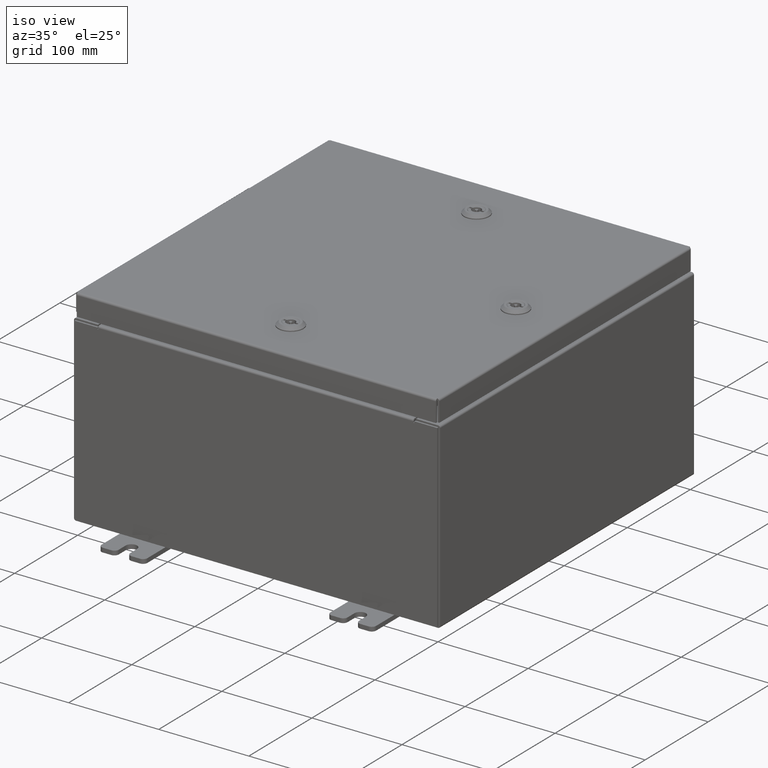
[diagram: clean part render]
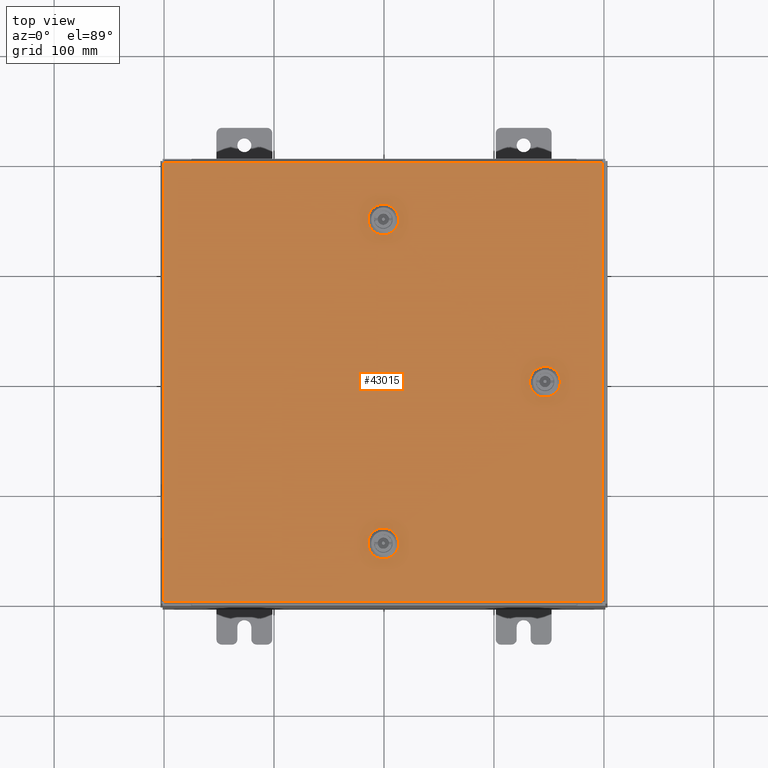
[diagram: tour spotlight — one face highlighted and labeled with its STEP entity id]
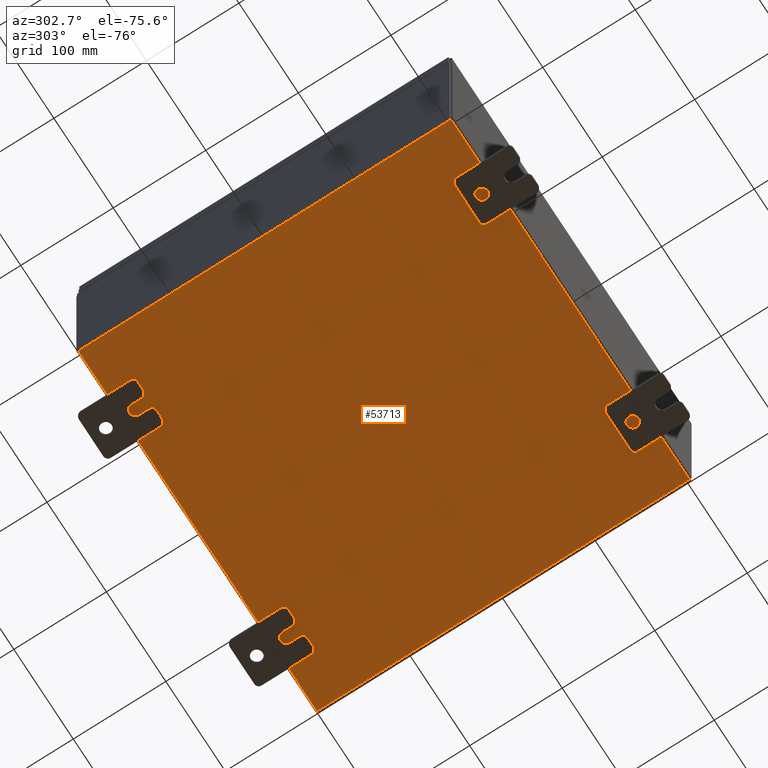
[diagram: tour spotlight — one face highlighted and labeled with its STEP entity id]
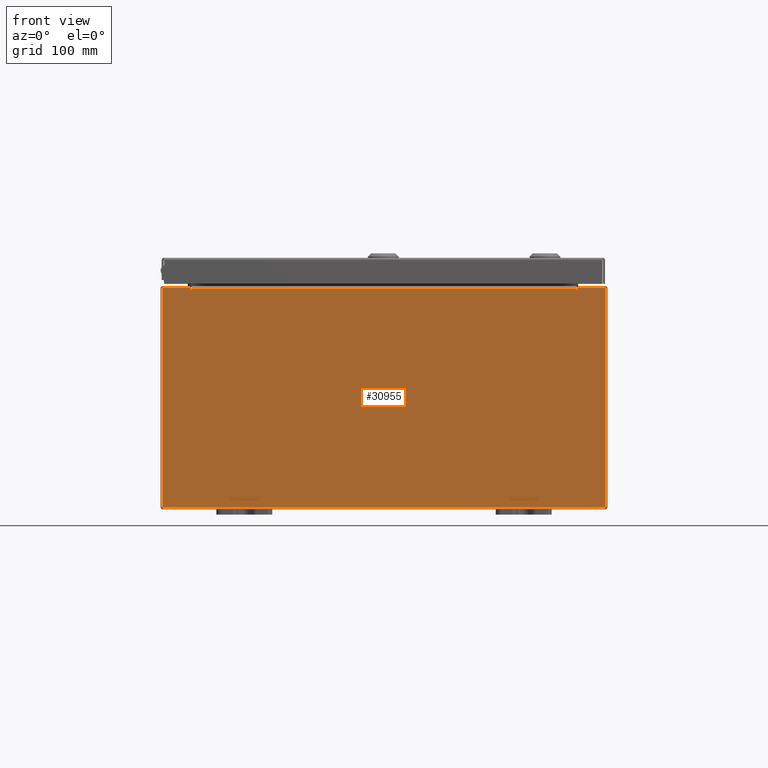
[diagram: tour spotlight — one face highlighted and labeled with its STEP entity id]
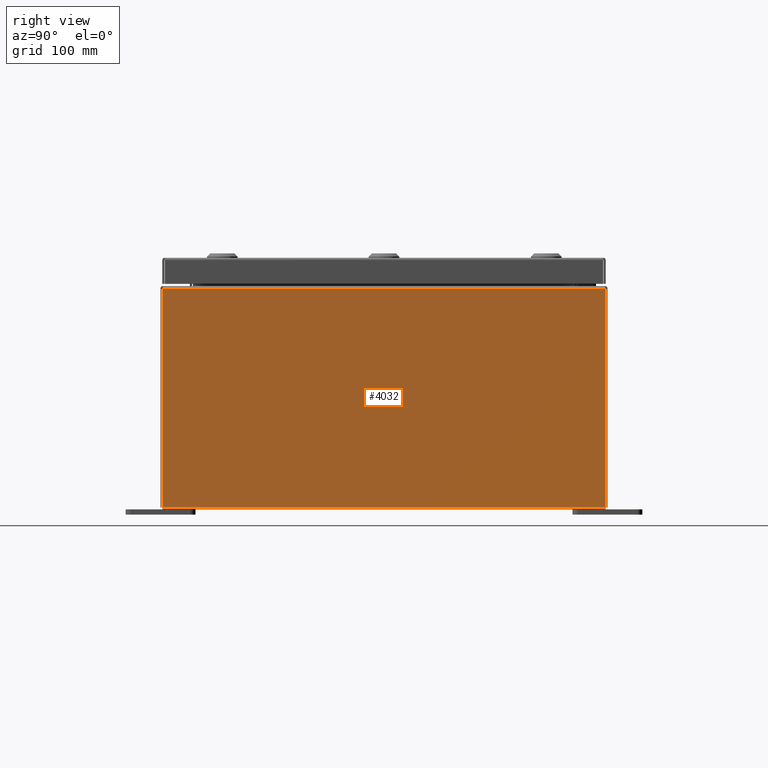
[diagram: tour spotlight — one face highlighted and labeled with its STEP entity id]
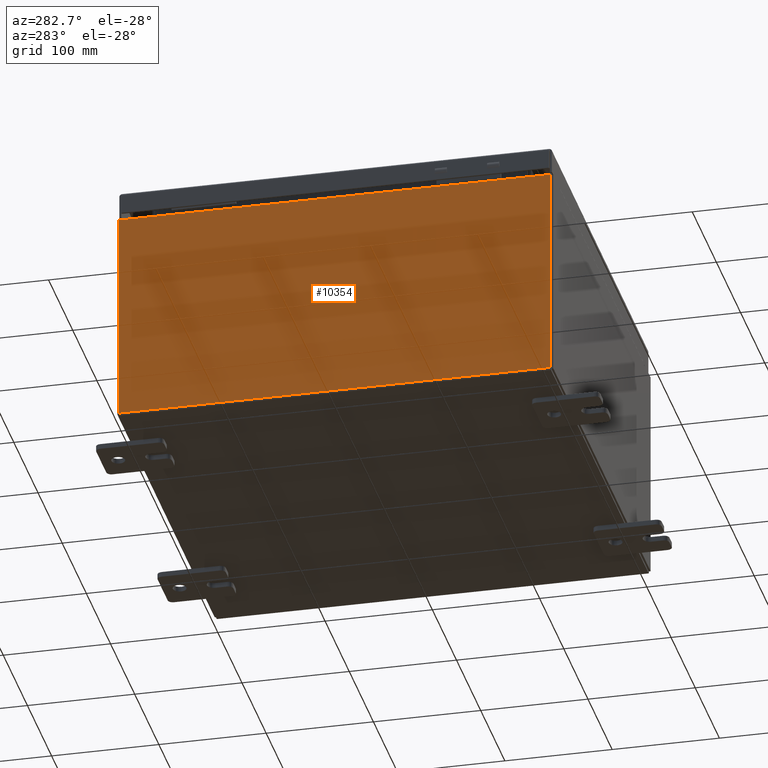
[diagram: tour spotlight — one face highlighted and labeled with its STEP entity id]
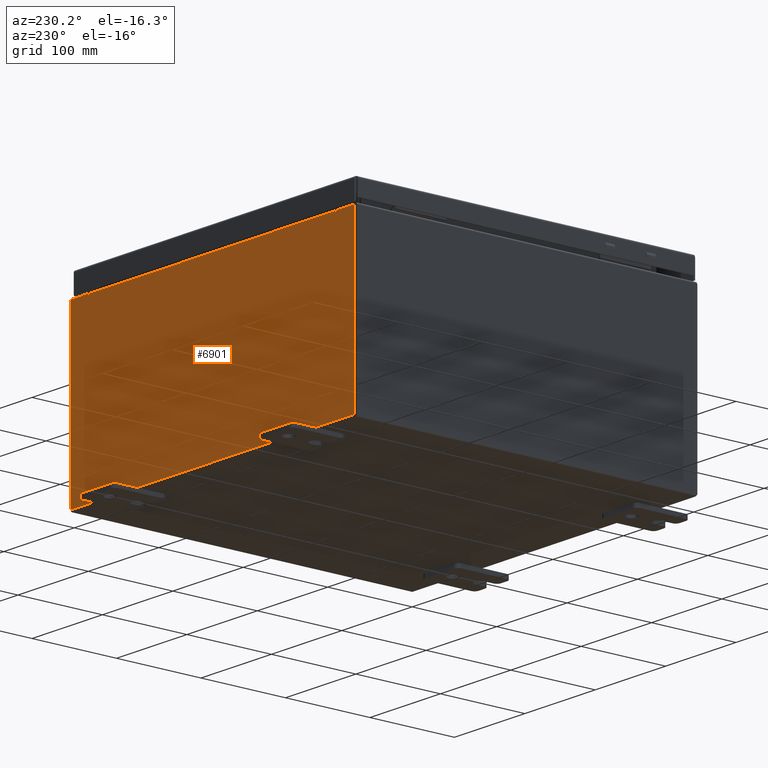
[diagram: tour spotlight — one face highlighted and labeled with its STEP entity id]
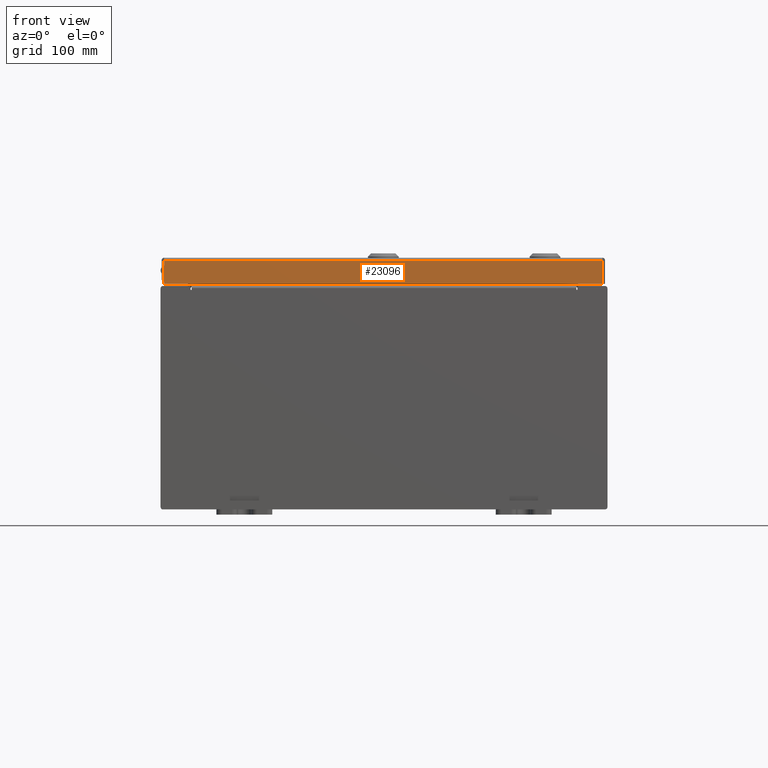
[diagram: tour spotlight — one face highlighted and labeled with its STEP entity id]
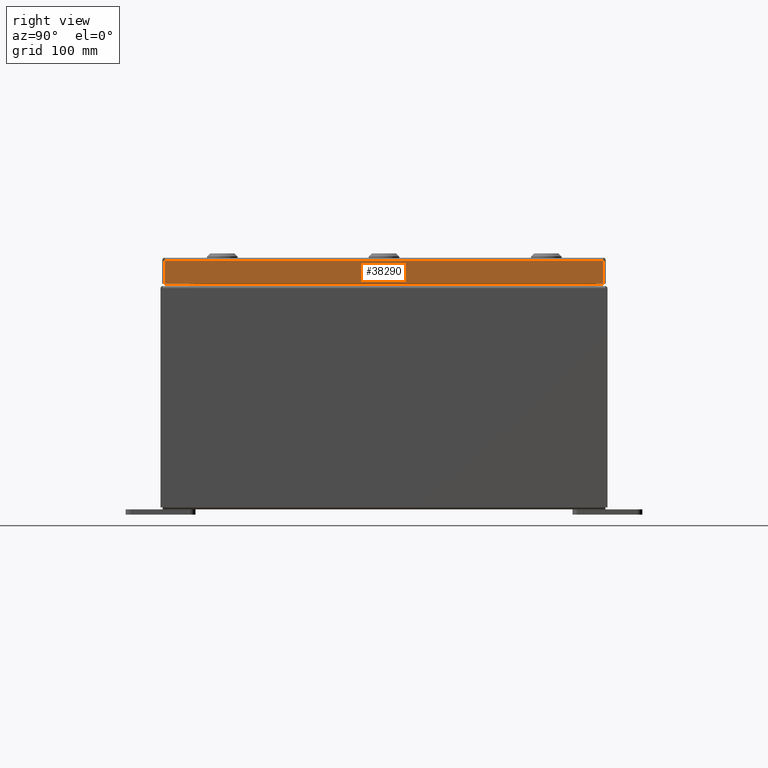
[diagram: tour spotlight — one face highlighted and labeled with its STEP entity id]
A machine part: a face-by-face anatomy tour. The part has 2966 B-rep faces; the first image is the clean iso view, then the 8 largest visible faces are spotlighted one at a time (largest first), each with its STEP entity span.

Face 1 — top view, entity #43015. In plain terms, the highlighted planar face has unit normal (0, 0, -1).
Definition (entity closure, byte-faithful):
#804 = LINE ( 'NONE', #60760, #2349 ) ;
#1057 = EDGE_CURVE ( 'NONE', #28223, #12970, #11593, .T. ) ;
#1468 = VECTOR ( 'NONE', #32363, 39.37007874015748100 ) ;
#1615 = PLANE ( 'NONE',  #28605 ) ;
#1704 = ORIENTED_EDGE ( 'NONE', *, *, #56262, .F. ) ;
#1844 = ORIENTED_EDGE ( 'NONE', *, *, #3812, .F. ) ;
#2332 = CARTESIAN_POINT ( 'NONE',  ( -0.1994523752678689600, -5.392799999999994900, -4.698778549102532700E-014 ) ) ;
#2349 = VECTOR ( 'NONE', #17501, 39.37007874015748100 ) ;
#2397 = ORIENTED_EDGE ( 'NONE', *, *, #27569, .F. ) ;
#2421 = CARTESIAN_POINT ( 'NONE',  ( 1.529834876451987200E-014, -5.787799999999992700, -4.917326388595673900E-014 ) ) ;
#2520 = CARTESIAN_POINT ( 'NONE',  ( -7.849800000000000100, 7.849800000000000100, 0.0000000000000000000 ) ) ;
#2779 = AXIS2_PLACEMENT_3D ( 'NONE', #40483, #11596, #45368 ) ;
#2960 = VECTOR ( 'NONE', #10441, 39.37007874015748100 ) ;
#3325 = VERTEX_POINT ( 'NONE', #16240 ) ;
#3342 = EDGE_LOOP ( 'NONE', ( #14923, #51410, #31887, #1704, #23796 ) ) ;
#3812 = EDGE_CURVE ( 'NONE', #57940, #23081, #45528, .T. ) ;
#4157 = VERTEX_POINT ( 'NONE', #57452 ) ;
#4488 = DIRECTION ( 'NONE',  ( 1.000000000000000000, 2.739348669069617500E-015, -0.0000000000000000000 ) ) ;
#4631 = CARTESIAN_POINT ( 'NONE',  ( 7.849800000000000100, -7.849800000000000100, 0.0000000000000000000 ) ) ;
#4758 = EDGE_CURVE ( 'NONE', #17139, #5789, #56778, .T. ) ;
#5789 = VERTEX_POINT ( 'NONE', #18703 ) ;
#6395 = CARTESIAN_POINT ( 'NONE',  ( 5.787800000000007800, 1.529834876451987200E-014, 0.0000000000000000000 ) ) ;
#6435 = DIRECTION ( 'NONE',  ( -1.000000000000000000, 0.0000000000000000000, -0.0000000000000000000 ) ) ;
#6746 = VERTEX_POINT ( 'NONE', #48368 ) ;
#7243 = DIRECTION ( 'NONE',  ( 0.0000000000000000000, 1.000000000000000000, 6.982962677686252500E-015 ) ) ;
#8607 = EDGE_CURVE ( 'NONE', #25099, #57940, #51310, .T. ) ;
#8903 = VECTOR ( 'NONE', #52723, 39.37007874015748100 ) ;
#9450 = ORIENTED_EDGE ( 'NONE', *, *, #8607, .F. ) ;
#9581 = FACE_BOUND ( 'NONE', #3342, .T. ) ;
#9609 = CARTESIAN_POINT ( 'NONE',  ( 5.787800000000007800, 1.529834876451987200E-014, 0.0000000000000000000 ) ) ;
#9726 = AXIS2_PLACEMENT_3D ( 'NONE', #6395, #40132, #11247 ) ;
#10186 = CARTESIAN_POINT ( 'NONE',  ( 0.1994523752679067700, 6.182799999999984300, 0.0000000000000000000 ) ) ;
#10441 = DIRECTION ( 'NONE',  ( -8.218046007208852600E-015, 1.000000000000000000, -0.0000000000000000000 ) ) ;
#10551 = EDGE_CURVE ( 'NONE', #30524, #57925, #43918, .T. ) ;
#11247 = DIRECTION ( 'NONE',  ( 1.000000000000000000, 0.0000000000000000000, 0.0000000000000000000 ) ) ;
#11593 = LINE ( 'NONE', #10186, #50140 ) ;
#11596 = DIRECTION ( 'NONE',  ( 0.0000000000000000000, 0.0000000000000000000, 1.000000000000000000 ) ) ;
#12262 = ORIENTED_EDGE ( 'NONE', *, *, #4758, .F. ) ;
#12346 = CARTESIAN_POINT ( 'NONE',  ( 5.392800000000011800, -0.1994523752678671000, 0.0000000000000000000 ) ) ;
#12498 = CARTESIAN_POINT ( 'NONE',  ( 0.1994523752678995500, 5.392799999999995800, 0.0000000000000000000 ) ) ;
#12970 = VERTEX_POINT ( 'NONE', #28942 ) ;
#13167 = CARTESIAN_POINT ( 'NONE',  ( 0.1994523752678995500, -5.392799999999995800, -4.698778549102532700E-014 ) ) ;
#13423 = AXIS2_PLACEMENT_3D ( 'NONE', #53425, #24477, #58225 ) ;
#13431 = DIRECTION ( 'NONE',  ( -1.095739467627836100E-014, -1.000000000000000000, 0.0000000000000000000 ) ) ;
#14070 = LINE ( 'NONE', #45462, #36724 ) ;
#14146 = CARTESIAN_POINT ( 'NONE',  ( -7.849800000000000100, -7.849800000000000100, 0.0000000000000000000 ) ) ;
#14435 = DIRECTION ( 'NONE',  ( 1.000000000000000000, 0.0000000000000000000, 0.0000000000000000000 ) ) ;
#14923 = ORIENTED_EDGE ( 'NONE', *, *, #60763, .F. ) ;
#15655 = EDGE_CURVE ( 'NONE', #29389, #6746, #33766, .T. ) ;
#16240 = CARTESIAN_POINT ( 'NONE',  ( 0.4425000000000126100, 5.787799999999992700, 0.0000000000000000000 ) ) ;
#16572 = EDGE_CURVE ( 'NONE', #20426, #29389, #14070, .T. ) ;
#16752 = CIRCLE ( 'NONE', #13423, 0.4424999999999972800 ) ;
#17139 = VERTEX_POINT ( 'NONE', #58420 ) ;
#17501 = DIRECTION ( 'NONE',  ( 1.000000000000000000, 1.369674334534795400E-014, 9.732121487607481600E-029 ) ) ;
#18163 = EDGE_LOOP ( 'NONE', ( #44985, #40050, #35601, #28968 ) ) ;
#18388 = CARTESIAN_POINT ( 'NONE',  ( 0.1994523752679068500, 6.182799999999984300, 0.0000000000000000000 ) ) ;
#18703 = CARTESIAN_POINT ( 'NONE',  ( 5.392800000000015400, 0.1994523752679058200, 0.0000000000000000000 ) ) ;
#18780 = VERTEX_POINT ( 'NONE', #34643 ) ;
#18915 = CARTESIAN_POINT ( 'NONE',  ( 0.4425000000000126100, -5.787799999999992700, -4.917326388595673900E-014 ) ) ;
#19434 = VECTOR ( 'NONE', #23866, 39.37007874015748100 ) ;
#20071 = ORIENTED_EDGE ( 'NONE', *, *, #10551, .F. ) ;
#20364 = DIRECTION ( 'NONE',  ( -0.0000000000000000000, -6.982962677686266700E-015, 1.000000000000000000 ) ) ;
#20426 = VERTEX_POINT ( 'NONE', #14146 ) ;
#23081 = VERTEX_POINT ( 'NONE', #46308 ) ;
#23623 = CARTESIAN_POINT ( 'NONE',  ( 7.849800000000000100, 7.849800000000000100, 0.0000000000000000000 ) ) ;
#23796 = ORIENTED_EDGE ( 'NONE', *, *, #53002, .F. ) ;
#23866 = DIRECTION ( 'NONE',  ( 0.0000000000000000000, 1.000000000000000000, 0.0000000000000000000 ) ) ;
#24400 = CIRCLE ( 'NONE', #36163, 0.4424999999999973400 ) ;
#24477 = DIRECTION ( 'NONE',  ( -0.0000000000000000000, -6.982962677686266700E-015, 1.000000000000000000 ) ) ;
#24873 = AXIS2_PLACEMENT_3D ( 'NONE', #9609, #43389, #14435 ) ;
#25099 = VERTEX_POINT ( 'NONE', #61704 ) ;
#25324 = VERTEX_POINT ( 'NONE', #29164 ) ;
#25556 = CARTESIAN_POINT ( 'NONE',  ( 1.529834876451987200E-014, 5.787799999999992700, 0.0000000000000000000 ) ) ;
#27090 = CIRCLE ( 'NONE', #38597, 0.4424999999999972800 ) ;
#27569 = EDGE_CURVE ( 'NONE', #5789, #30524, #59768, .T. ) ;
#28036 = CARTESIAN_POINT ( 'NONE',  ( 1.529834876451987200E-014, 5.787799999999992700, 0.0000000000000000000 ) ) ;
#28223 = VERTEX_POINT ( 'NONE', #18388 ) ;
#28470 = AXIS2_PLACEMENT_3D ( 'NONE', #2421, #36109, #7243 ) ;
#28605 = AXIS2_PLACEMENT_3D ( 'NONE', #54382, #35325, #6435 ) ;
#28942 = CARTESIAN_POINT ( 'NONE',  ( -0.1994523752678657400, 6.182799999999989600, 0.0000000000000000000 ) ) ;
#28968 = ORIENTED_EDGE ( 'NONE', *, *, #33385, .T. ) ;
#29164 = CARTESIAN_POINT ( 'NONE',  ( -0.1994523752678689600, 5.392799999999994900, 0.0000000000000000000 ) ) ;
#29389 = VERTEX_POINT ( 'NONE', #4631 ) ;
#30383 = DIRECTION ( 'NONE',  ( 1.000000000000000000, 0.0000000000000000000, 0.0000000000000000000 ) ) ;
#30524 = VERTEX_POINT ( 'NONE', #12346 ) ;
#31887 = ORIENTED_EDGE ( 'NONE', *, *, #1057, .F. ) ;
#32363 = DIRECTION ( 'NONE',  ( -1.000000000000000000, 2.739348669069617500E-015, 1.946424297521515400E-029 ) ) ;
#32639 = CARTESIAN_POINT ( 'NONE',  ( 5.392800000000015400, 0.1994523752679053800, 0.0000000000000000000 ) ) ;
#32874 = DIRECTION ( 'NONE',  ( 1.000000000000000000, 0.0000000000000000000, 0.0000000000000000000 ) ) ;
#33098 = ORIENTED_EDGE ( 'NONE', *, *, #60209, .F. ) ;
#33360 = CARTESIAN_POINT ( 'NONE',  ( 0.1994523752678995500, 5.392799999999995800, 0.0000000000000000000 ) ) ;
#33385 = EDGE_CURVE ( 'NONE', #18780, #20426, #45941, .T. ) ;
#33714 = FACE_BOUND ( 'NONE', #58703, .T. ) ;
#33766 = LINE ( 'NONE', #47926, #19434 ) ;
#34643 = CARTESIAN_POINT ( 'NONE',  ( -7.849800000000000100, 7.849800000000000100, 0.0000000000000000000 ) ) ;
#35296 = LINE ( 'NONE', #23623, #48157 ) ;
#35325 = DIRECTION ( 'NONE',  ( 0.0000000000000000000, 0.0000000000000000000, -1.000000000000000000 ) ) ;
#35601 = ORIENTED_EDGE ( 'NONE', *, *, #61346, .T. ) ;
#36109 = DIRECTION ( 'NONE',  ( -0.0000000000000000000, -6.982962677686266700E-015, 1.000000000000000000 ) ) ;
#36163 = AXIS2_PLACEMENT_3D ( 'NONE', #28036, #61827, #32874 ) ;
#36724 = VECTOR ( 'NONE', #39528, 39.37007874015748100 ) ;
#38597 = AXIS2_PLACEMENT_3D ( 'NONE', #49307, #20364, #54163 ) ;
#38728 = CIRCLE ( 'NONE', #57445, 0.4424999999999979500 ) ;
#39052 = DIRECTION ( 'NONE',  ( -1.000000000000000000, 1.369674334534795400E-014, 0.0000000000000000000 ) ) ;
#39528 = DIRECTION ( 'NONE',  ( 1.000000000000000000, -0.0000000000000000000, -0.0000000000000000000 ) ) ;
#40050 = ORIENTED_EDGE ( 'NONE', *, *, #15655, .T. ) ;
#40132 = DIRECTION ( 'NONE',  ( 0.0000000000000000000, 0.0000000000000000000, 1.000000000000000000 ) ) ;
#40483 = CARTESIAN_POINT ( 'NONE',  ( 1.529834876451987200E-014, 5.787799999999992700, 0.0000000000000000000 ) ) ;
#42318 = CIRCLE ( 'NONE', #2779, 0.4424999999999973400 ) ;
#42595 = ORIENTED_EDGE ( 'NONE', *, *, #56428, .F. ) ;
#43015 = ADVANCED_FACE ( 'NONE', ( #59415, #33714, #9581, #48097 ), #1615, .F. ) ;
#43389 = DIRECTION ( 'NONE',  ( 0.0000000000000000000, 0.0000000000000000000, 1.000000000000000000 ) ) ;
#43918 = CIRCLE ( 'NONE', #9726, 0.4424999999999983400 ) ;
#44985 = ORIENTED_EDGE ( 'NONE', *, *, #16572, .T. ) ;
#45368 = DIRECTION ( 'NONE',  ( 1.000000000000000000, 0.0000000000000000000, 0.0000000000000000000 ) ) ;
#45462 = CARTESIAN_POINT ( 'NONE',  ( -7.849800000000000100, -7.849800000000000100, 0.0000000000000000000 ) ) ;
#45528 = CIRCLE ( 'NONE', #28470, 0.4424999999999983400 ) ;
#45768 = CARTESIAN_POINT ( 'NONE',  ( 6.182800000000007400, -0.1994523752678676000, 0.0000000000000000000 ) ) ;
#45941 = LINE ( 'NONE', #2520, #8903 ) ;
#46308 = CARTESIAN_POINT ( 'NONE',  ( -0.1994523752678657400, -6.182799999999990500, 0.0000000000000000000 ) ) ;
#46948 = VECTOR ( 'NONE', #13431, 39.37007874015748100 ) ;
#47341 = EDGE_CURVE ( 'NONE', #12970, #25324, #38728, .T. ) ;
#47926 = CARTESIAN_POINT ( 'NONE',  ( 7.849800000000000100, -7.849800000000000100, 0.0000000000000000000 ) ) ;
#48097 = FACE_OUTER_BOUND ( 'NONE', #18163, .T. ) ;
#48157 = VECTOR ( 'NONE', #62271, 39.37007874015748100 ) ;
#48368 = CARTESIAN_POINT ( 'NONE',  ( 7.849800000000000100, 7.849800000000000100, 0.0000000000000000000 ) ) ;
#49307 = CARTESIAN_POINT ( 'NONE',  ( 1.529834876451987200E-014, -5.787799999999992700, -4.917326388595673900E-014 ) ) ;
#49419 = VERTEX_POINT ( 'NONE', #12498 ) ;
#49867 = EDGE_CURVE ( 'NONE', #4157, #53607, #16752, .T. ) ;
#50140 = VECTOR ( 'NONE', #39052, 39.37007874015748100 ) ;
#50493 = VECTOR ( 'NONE', #4488, 39.37007874015748100 ) ;
#50663 = ORIENTED_EDGE ( 'NONE', *, *, #60207, .F. ) ;
#51310 = LINE ( 'NONE', #13167, #1468 ) ;
#51410 = ORIENTED_EDGE ( 'NONE', *, *, #47341, .F. ) ;
#51986 = LINE ( 'NONE', #33360, #50493 ) ;
#52723 = DIRECTION ( 'NONE',  ( 0.0000000000000000000, -1.000000000000000000, 0.0000000000000000000 ) ) ;
#52778 = LINE ( 'NONE', #58551, #2960 ) ;
#53002 = EDGE_CURVE ( 'NONE', #49419, #3325, #24400, .T. ) ;
#53425 = CARTESIAN_POINT ( 'NONE',  ( 1.529834876451987200E-014, -5.787799999999992700, -4.917326388595673900E-014 ) ) ;
#53607 = VERTEX_POINT ( 'NONE', #18915 ) ;
#54163 = DIRECTION ( 'NONE',  ( 0.0000000000000000000, 1.000000000000000000, 6.982962677686269100E-015 ) ) ;
#54382 = CARTESIAN_POINT ( 'NONE',  ( 0.0000000000000000000, 0.0000000000000000000, 0.0000000000000000000 ) ) ;
#56262 = EDGE_CURVE ( 'NONE', #3325, #28223, #42318, .T. ) ;
#56428 = EDGE_CURVE ( 'NONE', #23081, #4157, #804, .T. ) ;
#56778 = CIRCLE ( 'NONE', #24873, 0.4424999999999972800 ) ;
#57445 = AXIS2_PLACEMENT_3D ( 'NONE', #25556, #59299, #30383 ) ;
#57452 = CARTESIAN_POINT ( 'NONE',  ( 0.1994523752679070700, -6.182799999999984300, -5.245148147835385400E-014 ) ) ;
#57920 = EDGE_LOOP ( 'NONE', ( #50663, #20071, #2397, #12262 ) ) ;
#57925 = VERTEX_POINT ( 'NONE', #45768 ) ;
#57940 = VERTEX_POINT ( 'NONE', #2332 ) ;
#58225 = DIRECTION ( 'NONE',  ( 0.0000000000000000000, 1.000000000000000000, 6.982962677686269100E-015 ) ) ;
#58420 = CARTESIAN_POINT ( 'NONE',  ( 6.182800000000003000, 0.1994523752679009100, 0.0000000000000000000 ) ) ;
#58441 = ORIENTED_EDGE ( 'NONE', *, *, #49867, .F. ) ;
#58551 = CARTESIAN_POINT ( 'NONE',  ( 6.182800000000003000, 0.1994523752679009100, 0.0000000000000000000 ) ) ;
#58703 = EDGE_LOOP ( 'NONE', ( #42595, #1844, #9450, #33098, #58441 ) ) ;
#59299 = DIRECTION ( 'NONE',  ( 0.0000000000000000000, 0.0000000000000000000, 1.000000000000000000 ) ) ;
#59415 = FACE_BOUND ( 'NONE', #57920, .T. ) ;
#59768 = LINE ( 'NONE', #32639, #46948 ) ;
#60207 = EDGE_CURVE ( 'NONE', #57925, #17139, #52778, .T. ) ;
#60209 = EDGE_CURVE ( 'NONE', #53607, #25099, #27090, .T. ) ;
#60760 = CARTESIAN_POINT ( 'NONE',  ( 0.1994523752679067700, -6.182799999999984300, -5.245148147835385400E-014 ) ) ;
#60763 = EDGE_CURVE ( 'NONE', #25324, #49419, #51986, .T. ) ;
#61346 = EDGE_CURVE ( 'NONE', #6746, #18780, #35296, .T. ) ;
#61704 = CARTESIAN_POINT ( 'NONE',  ( 0.1994523752678995500, -5.392799999999995800, -4.698778549102532700E-014 ) ) ;
#61827 = DIRECTION ( 'NONE',  ( 0.0000000000000000000, 0.0000000000000000000, 1.000000000000000000 ) ) ;
#62271 = DIRECTION ( 'NONE',  ( -1.000000000000000000, -0.0000000000000000000, -0.0000000000000000000 ) ) ;

Face 2 — auxiliary view, entity #53713. In plain terms, the highlighted planar face has unit normal (0, 0, -1).
Definition (entity closure, byte-faithful):
#538 = VERTEX_POINT ( 'NONE', #22164 ) ;
#1222 = ORIENTED_EDGE ( 'NONE', *, *, #12214, .F. ) ;
#2459 = DIRECTION ( 'NONE',  ( -0.0000000000000000000, 1.000000000000000000, -0.0000000000000000000 ) ) ;
#9842 = DIRECTION ( 'NONE',  ( -1.000000000000000000, 0.0000000000000000000, -0.0000000000000000000 ) ) ;
#10567 = ORIENTED_EDGE ( 'NONE', *, *, #50909, .T. ) ;
#11409 = EDGE_CURVE ( 'NONE', #17086, #538, #35509, .T. ) ;
#12214 = EDGE_CURVE ( 'NONE', #39843, #42741, #31725, .T. ) ;
#13976 = EDGE_LOOP ( 'NONE', ( #1222, #10567, #15489, #41540 ) ) ;
#15224 = CARTESIAN_POINT ( 'NONE',  ( 7.912299999999998300, 7.925300000000000000, -0.07469999999999996100 ) ) ;
#15489 = ORIENTED_EDGE ( 'NONE', *, *, #11409, .F. ) ;
#17086 = VERTEX_POINT ( 'NONE', #28123 ) ;
#18581 = LINE ( 'NONE', #15224, #55655 ) ;
#18868 = VECTOR ( 'NONE', #52161, 39.37007874015748100 ) ;
#20342 = CARTESIAN_POINT ( 'NONE',  ( -7.912300000000001000, -7.925300000000000900, -0.07469999999999996100 ) ) ;
#22164 = CARTESIAN_POINT ( 'NONE',  ( -7.912300000000001000, 7.925299999999998200, -0.07469999999999998900 ) ) ;
#23228 = CARTESIAN_POINT ( 'NONE',  ( -8.000000000000001800, -7.925300000000000900, -0.07469999999999998900 ) ) ;
#24208 = VECTOR ( 'NONE', #32784, 39.37007874015748100 ) ;
#28123 = CARTESIAN_POINT ( 'NONE',  ( 7.912299999999998300, 7.925300000000000000, -0.07469999999999996100 ) ) ;
#28865 = FACE_OUTER_BOUND ( 'NONE', #13976, .T. ) ;
#31725 = LINE ( 'NONE', #23228, #18868 ) ;
#32784 = DIRECTION ( 'NONE',  ( -1.000000000000000000, -0.0000000000000000000, -0.0000000000000000000 ) ) ;
#33877 = CARTESIAN_POINT ( 'NONE',  ( 0.0000000000000000000, 0.0000000000000000000, -0.07469999999999998900 ) ) ;
#35509 = LINE ( 'NONE', #61749, #24208 ) ;
#38710 = DIRECTION ( 'NONE',  ( 0.0000000000000000000, 0.0000000000000000000, -1.000000000000000000 ) ) ;
#39843 = VERTEX_POINT ( 'NONE', #20342 ) ;
#40152 = LINE ( 'NONE', #60255, #51532 ) ;
#41540 = ORIENTED_EDGE ( 'NONE', *, *, #43582, .T. ) ;
#42741 = VERTEX_POINT ( 'NONE', #62189 ) ;
#43415 = PLANE ( 'NONE',  #59662 ) ;
#43582 = EDGE_CURVE ( 'NONE', #17086, #42741, #18581, .T. ) ;
#50909 = EDGE_CURVE ( 'NONE', #39843, #538, #40152, .T. ) ;
#51532 = VECTOR ( 'NONE', #2459, 39.37007874015748100 ) ;
#52161 = DIRECTION ( 'NONE',  ( 1.000000000000000000, 0.0000000000000000000, 0.0000000000000000000 ) ) ;
#53713 = ADVANCED_FACE ( 'NONE', ( #28865 ), #43415, .T. ) ;
#55655 = VECTOR ( 'NONE', #58694, 39.37007874015748100 ) ;
#58694 = DIRECTION ( 'NONE',  ( -0.0000000000000000000, -1.000000000000000000, -0.0000000000000000000 ) ) ;
#59662 = AXIS2_PLACEMENT_3D ( 'NONE', #33877, #38710, #9842 ) ;
#60255 = CARTESIAN_POINT ( 'NONE',  ( -7.912300000000001000, -7.925300000000000900, -0.07469999999999996100 ) ) ;
#61749 = CARTESIAN_POINT ( 'NONE',  ( -8.000000000000001800, 7.925299999999998200, -0.07469999999999998900 ) ) ;
#62189 = CARTESIAN_POINT ( 'NONE',  ( 7.912299999999998300, -7.925300000000000900, -0.07469999999999998900 ) ) ;

Face 3 — front view, entity #30955. In plain terms, the highlighted planar face has unit normal (0, 1, -0).
Definition (entity closure, byte-faithful):
#490 = CARTESIAN_POINT ( 'NONE',  ( 0.0000000000000000000, 0.0000000000000000000, 0.0000000000000000000 ) ) ;
#1132 = VERTEX_POINT ( 'NONE', #39483 ) ;
#1272 = CARTESIAN_POINT ( 'NONE',  ( 6.887199999999998200, 0.0000000000000000000, 3.874950000000005400 ) ) ;
#1546 = VECTOR ( 'NONE', #38491, 39.37007874015748100 ) ;
#2079 = EDGE_LOOP ( 'NONE', ( #33255, #32742, #28483, #33145, #4073, #27278, #30255, #31393, #57838, #18597, #61719, #20206 ) ) ;
#2317 = CARTESIAN_POINT ( 'NONE',  ( -6.887199999999998200, 0.0000000000000000000, 3.874949999999992600 ) ) ;
#4073 = ORIENTED_EDGE ( 'NONE', *, *, #58442, .F. ) ;
#4452 = DIRECTION ( 'NONE',  ( 1.000000000000000000, 3.225867722578232700E-016, 9.992007221626408900E-016 ) ) ;
#4587 = CARTESIAN_POINT ( 'NONE',  ( 6.924549999999825000, 0.0000000000000000000, -2.939468441182747200E-013 ) ) ;
#4805 = CARTESIAN_POINT ( 'NONE',  ( -6.924550000000005300, 0.0000000000000000000, -6.556435184794231700E-015 ) ) ;
#5270 = VECTOR ( 'NONE', #14806, 39.37007874015748100 ) ;
#6640 = CARTESIAN_POINT ( 'NONE',  ( -7.925300000000000000, 0.0000000000000000000, 3.925299999999999100 ) ) ;
#6735 = CARTESIAN_POINT ( 'NONE',  ( -6.924549999999997300, 0.0000000000000000000, 3.874949999999999200 ) ) ;
#8208 = CARTESIAN_POINT ( 'NONE',  ( -6.887199999999998200, 0.0000000000000000000, 3.912299999999992600 ) ) ;
#8665 = DIRECTION ( 'NONE',  ( 3.225867722578232700E-016, 1.000000000000000000, -2.013110121372520500E-016 ) ) ;
#8949 = FACE_OUTER_BOUND ( 'NONE', #2079, .T. ) ;
#9925 = CARTESIAN_POINT ( 'NONE',  ( -7.925300000000006200, 0.0000000000000000000, -3.925300000000006700 ) ) ;
#10677 = VERTEX_POINT ( 'NONE', #16662 ) ;
#11340 = CARTESIAN_POINT ( 'NONE',  ( 6.924550000000000000, 0.0000000000000000000, 3.925299999999999100 ) ) ;
#11463 = DIRECTION ( 'NONE',  ( 9.992007221626408900E-016, -2.013110121372521300E-016, 1.000000000000000000 ) ) ;
#11501 = DIRECTION ( 'NONE',  ( 1.000000000000000000, 3.225867722578232700E-016, 9.992007221626408900E-016 ) ) ;
#12005 = VECTOR ( 'NONE', #11463, 39.37007874015748100 ) ;
#12508 = VECTOR ( 'NONE', #11501, 39.37007874015748100 ) ;
#12658 = VERTEX_POINT ( 'NONE', #6735 ) ;
#14144 = VECTOR ( 'NONE', #32477, 39.37007874015748100 ) ;
#14654 = CARTESIAN_POINT ( 'NONE',  ( -6.905874999999998200, 0.0000000000000000000, 3.874949999999992600 ) ) ;
#14760 = DIRECTION ( 'NONE',  ( -1.000000000000000000, -3.225867722578232700E-016, -9.992007221626408900E-016 ) ) ;
#14806 = DIRECTION ( 'NONE',  ( 9.992007221626408900E-016, -2.013110121372521300E-016, 1.000000000000000000 ) ) ;
#15182 = LINE ( 'NONE', #4587, #50719 ) ;
#15430 = CARTESIAN_POINT ( 'NONE',  ( -7.925300000000006200, 0.0000000000000000000, -3.925300000000006700 ) ) ;
#16330 = CARTESIAN_POINT ( 'NONE',  ( -7.925300000000000000, 0.0000000000000000000, 3.925299999999999100 ) ) ;
#16662 = CARTESIAN_POINT ( 'NONE',  ( 6.887200000000000000, 0.0000000000000000000, 3.912300000000005900 ) ) ;
#18597 = ORIENTED_EDGE ( 'NONE', *, *, #55887, .T. ) ;
#19125 = DIRECTION ( 'NONE',  ( -4.440492852616269000E-014, 2.013110121372381000E-016, -1.000000000000000000 ) ) ;
#19519 = DIRECTION ( 'NONE',  ( 0.0000000000000000000, 2.013110121372521300E-016, -1.000000000000000000 ) ) ;
#19893 = DIRECTION ( 'NONE',  ( -9.992007221626408900E-016, 2.013110121372521300E-016, -1.000000000000000000 ) ) ;
#20206 = ORIENTED_EDGE ( 'NONE', *, *, #49694, .T. ) ;
#21410 = VERTEX_POINT ( 'NONE', #23772 ) ;
#22550 = VECTOR ( 'NONE', #33437, 39.37007874015748100 ) ;
#22631 = AXIS2_PLACEMENT_3D ( 'NONE', #14654, #48443, #19519 ) ;
#23749 = CARTESIAN_POINT ( 'NONE',  ( -6.887200000000005300, 0.0000000000000000000, -6.556435184794231700E-015 ) ) ;
#23772 = CARTESIAN_POINT ( 'NONE',  ( 7.925299999999992900, 0.0000000000000000000, -3.925299999999993800 ) ) ;
#24772 = LINE ( 'NONE', #31364, #36071 ) ;
#26922 = VERTEX_POINT ( 'NONE', #62505 ) ;
#27176 = CARTESIAN_POINT ( 'NONE',  ( 7.925300000000000000, 0.0000000000000000000, 3.925300000000000500 ) ) ;
#27278 = ORIENTED_EDGE ( 'NONE', *, *, #49601, .F. ) ;
#27655 = CARTESIAN_POINT ( 'NONE',  ( 7.925300000000000000, 0.0000000000000000000, 3.925300000000000500 ) ) ;
#28316 = VERTEX_POINT ( 'NONE', #29144 ) ;
#28483 = ORIENTED_EDGE ( 'NONE', *, *, #31462, .F. ) ;
#29144 = CARTESIAN_POINT ( 'NONE',  ( -7.925300000000000000, 0.0000000000000000000, 3.925299999999999100 ) ) ;
#29883 = LINE ( 'NONE', #6640, #12508 ) ;
#30255 = ORIENTED_EDGE ( 'NONE', *, *, #55519, .F. ) ;
#30955 = ADVANCED_FACE ( 'NONE', ( #8949 ), #58283, .F. ) ;
#31364 = CARTESIAN_POINT ( 'NONE',  ( -6.887200000000000000, 0.0000000000000000000, 3.912299999999992600 ) ) ;
#31393 = ORIENTED_EDGE ( 'NONE', *, *, #36566, .T. ) ;
#31462 = EDGE_CURVE ( 'NONE', #56484, #33299, #49760, .T. ) ;
#31492 = AXIS2_PLACEMENT_3D ( 'NONE', #490, #48828, #19893 ) ;
#32477 = DIRECTION ( 'NONE',  ( -9.992007221626408900E-016, 2.013110121372521300E-016, -1.000000000000000000 ) ) ;
#32742 = ORIENTED_EDGE ( 'NONE', *, *, #45000, .F. ) ;
#33145 = ORIENTED_EDGE ( 'NONE', *, *, #41525, .T. ) ;
#33255 = ORIENTED_EDGE ( 'NONE', *, *, #56720, .F. ) ;
#33299 = VERTEX_POINT ( 'NONE', #2317 ) ;
#33437 = DIRECTION ( 'NONE',  ( -9.992007221626408900E-016, 2.013110121372521300E-016, -1.000000000000000000 ) ) ;
#36071 = VECTOR ( 'NONE', #41261, 39.37007874015748100 ) ;
#36566 = EDGE_CURVE ( 'NONE', #58562, #48347, #29883, .T. ) ;
#37004 = LINE ( 'NONE', #9925, #61236 ) ;
#37523 = CARTESIAN_POINT ( 'NONE',  ( 6.905874999999999100, 0.0000000000000000000, 3.874950000000005400 ) ) ;
#38491 = DIRECTION ( 'NONE',  ( 9.992007221626408900E-016, -2.013110121372521300E-016, 1.000000000000000000 ) ) ;
#39483 = CARTESIAN_POINT ( 'NONE',  ( -6.924549999999999100, 0.0000000000000000000, 3.925299999999998200 ) ) ;
#39993 = LINE ( 'NONE', #4805, #1546 ) ;
#40685 = LINE ( 'NONE', #16330, #12005 ) ;
#41261 = DIRECTION ( 'NONE',  ( 1.000000000000000000, 3.225867722578232700E-016, 9.992007221626408900E-016 ) ) ;
#41525 = EDGE_CURVE ( 'NONE', #56484, #10677, #24772, .T. ) ;
#42431 = DIRECTION ( 'NONE',  ( 0.0000000000000000000, 2.013110121372521300E-016, -1.000000000000000000 ) ) ;
#43448 = CIRCLE ( 'NONE', #22631, 0.01867500000000003900 ) ;
#43594 = VERTEX_POINT ( 'NONE', #15430 ) ;
#43945 = VECTOR ( 'NONE', #4452, 39.37007874015748100 ) ;
#45000 = EDGE_CURVE ( 'NONE', #33299, #12658, #43448, .T. ) ;
#48347 = VERTEX_POINT ( 'NONE', #27176 ) ;
#48443 = DIRECTION ( 'NONE',  ( 3.225867722578232700E-016, 1.000000000000000000, -2.013110121372520500E-016 ) ) ;
#48607 = CARTESIAN_POINT ( 'NONE',  ( 6.887199999999992900, 0.0000000000000000000, 6.556435184794231700E-015 ) ) ;
#48828 = DIRECTION ( 'NONE',  ( -3.225867722578236700E-016, -1.000000000000000000, -2.013110121372518100E-016 ) ) ;
#49601 = EDGE_CURVE ( 'NONE', #26922, #53284, #61323, .T. ) ;
#49694 = EDGE_CURVE ( 'NONE', #28316, #1132, #58258, .T. ) ;
#49760 = LINE ( 'NONE', #23749, #22550 ) ;
#50719 = VECTOR ( 'NONE', #19125, 39.37007874015748100 ) ;
#52719 = LINE ( 'NONE', #27655, #14144 ) ;
#53284 = VERTEX_POINT ( 'NONE', #1272 ) ;
#53516 = AXIS2_PLACEMENT_3D ( 'NONE', #37523, #8665, #42431 ) ;
#55149 = LINE ( 'NONE', #48607, #5270 ) ;
#55519 = EDGE_CURVE ( 'NONE', #58562, #26922, #15182, .T. ) ;
#55887 = EDGE_CURVE ( 'NONE', #21410, #43594, #37004, .T. ) ;
#56484 = VERTEX_POINT ( 'NONE', #8208 ) ;
#56720 = EDGE_CURVE ( 'NONE', #12658, #1132, #39993, .T. ) ;
#57838 = ORIENTED_EDGE ( 'NONE', *, *, #61133, .T. ) ;
#58258 = LINE ( 'NONE', #62285, #43945 ) ;
#58283 = PLANE ( 'NONE',  #31492 ) ;
#58442 = EDGE_CURVE ( 'NONE', #53284, #10677, #55149, .T. ) ;
#58562 = VERTEX_POINT ( 'NONE', #11340 ) ;
#59737 = EDGE_CURVE ( 'NONE', #43594, #28316, #40685, .T. ) ;
#61133 = EDGE_CURVE ( 'NONE', #48347, #21410, #52719, .T. ) ;
#61236 = VECTOR ( 'NONE', #14760, 39.37007874015748100 ) ;
#61323 = CIRCLE ( 'NONE', #53516, 0.01867500000000003900 ) ;
#61719 = ORIENTED_EDGE ( 'NONE', *, *, #59737, .T. ) ;
#62285 = CARTESIAN_POINT ( 'NONE',  ( -7.925300000000000000, 0.0000000000000000000, 3.925299999999999100 ) ) ;
#62505 = CARTESIAN_POINT ( 'NONE',  ( 6.924550000000000000, 0.0000000000000000000, 3.874950000000000100 ) ) ;

Face 4 — right view, entity #4032. In plain terms, the highlighted planar face has unit normal (-1, 0, 0).
Definition (entity closure, byte-faithful):
#371 = EDGE_CURVE ( 'NONE', #50012, #52419, #42589, .T. ) ;
#950 = DIRECTION ( 'NONE',  ( -0.0000000000000000000, -1.000000000000000000, -0.0000000000000000000 ) ) ;
#1883 = EDGE_CURVE ( 'NONE', #4194, #24519, #15401, .T. ) ;
#2628 = VECTOR ( 'NONE', #45938, 39.37007874015748100 ) ;
#2679 = DIRECTION ( 'NONE',  ( -0.0000000000000000000, -1.000000000000000000, -0.0000000000000000000 ) ) ;
#4032 = ADVANCED_FACE ( 'NONE', ( #40958 ), #51880, .F. ) ;
#4194 = VERTEX_POINT ( 'NONE', #28748 ) ;
#4520 = EDGE_LOOP ( 'NONE', ( #5756, #14042, #54005, #43024 ) ) ;
#5756 = ORIENTED_EDGE ( 'NONE', *, *, #51004, .T. ) ;
#7349 = VECTOR ( 'NONE', #950, 39.37007874015748100 ) ;
#7395 = DIRECTION ( 'NONE',  ( -3.446996320220387700E-015, -1.378798528088154900E-016, -1.000000000000000000 ) ) ;
#10401 = CARTESIAN_POINT ( 'NONE',  ( 8.000000000000028400, 7.925300000000000900, 7.837599999999992100 ) ) ;
#14042 = ORIENTED_EDGE ( 'NONE', *, *, #371, .T. ) ;
#15392 = VECTOR ( 'NONE', #7395, 39.37007874015748100 ) ;
#15401 = LINE ( 'NONE', #21663, #2628 ) ;
#18095 = CARTESIAN_POINT ( 'NONE',  ( 7.999999999999999100, 0.0000000000000000000, -2.783070143545468100E-014 ) ) ;
#20813 = AXIS2_PLACEMENT_3D ( 'NONE', #18095, #56724, #27785 ) ;
#21663 = CARTESIAN_POINT ( 'NONE',  ( 7.999999999999999100, 7.925299999999998200, -2.783070143545468100E-014 ) ) ;
#23257 = CARTESIAN_POINT ( 'NONE',  ( 7.999999999999999100, -7.925300000000000000, 0.01299999999999985200 ) ) ;
#24519 = VERTEX_POINT ( 'NONE', #10401 ) ;
#25248 = CARTESIAN_POINT ( 'NONE',  ( 8.000000000000026600, -7.925300000000000900, 7.837599999999998300 ) ) ;
#27785 = DIRECTION ( 'NONE',  ( 3.446996320220386900E-015, 0.0000000000000000000, 1.000000000000000000 ) ) ;
#28748 = CARTESIAN_POINT ( 'NONE',  ( 7.999999999999999100, 7.925300000000000000, 0.01299999999999985200 ) ) ;
#35642 = CARTESIAN_POINT ( 'NONE',  ( 7.999999999999999100, -7.925300000000000900, -2.673796223798897500E-014 ) ) ;
#37097 = VECTOR ( 'NONE', #2679, 39.37007874015748100 ) ;
#38606 = LINE ( 'NONE', #45904, #37097 ) ;
#40958 = FACE_OUTER_BOUND ( 'NONE', #4520, .T. ) ;
#42589 = LINE ( 'NONE', #35642, #15392 ) ;
#43024 = ORIENTED_EDGE ( 'NONE', *, *, #1883, .T. ) ;
#45904 = CARTESIAN_POINT ( 'NONE',  ( 8.000000000000028400, 7.925300000000000900, 7.837599999999992100 ) ) ;
#45938 = DIRECTION ( 'NONE',  ( 3.446996320220387700E-015, 0.0000000000000000000, 1.000000000000000000 ) ) ;
#47362 = LINE ( 'NONE', #53921, #7349 ) ;
#50012 = VERTEX_POINT ( 'NONE', #25248 ) ;
#51004 = EDGE_CURVE ( 'NONE', #24519, #50012, #38606, .T. ) ;
#51880 = PLANE ( 'NONE',  #20813 ) ;
#52419 = VERTEX_POINT ( 'NONE', #23257 ) ;
#53921 = CARTESIAN_POINT ( 'NONE',  ( 7.999999999999999100, -7.925300000000000000, 0.01299999999999985200 ) ) ;
#54005 = ORIENTED_EDGE ( 'NONE', *, *, #61949, .F. ) ;
#56724 = DIRECTION ( 'NONE',  ( -1.000000000000000000, 0.0000000000000000000, 3.446996320220386900E-015 ) ) ;
#61949 = EDGE_CURVE ( 'NONE', #4194, #52419, #47362, .T. ) ;

Face 5 — auxiliary view, entity #10354. In plain terms, the highlighted planar face has unit normal (1, 0, 0).
Definition (entity closure, byte-faithful):
#2949 = LINE ( 'NONE', #50768, #25577 ) ;
#4647 = CARTESIAN_POINT ( 'NONE',  ( -8.000000000000001800, 7.925299999999998200, 0.01299999999999985200 ) ) ;
#4721 = CARTESIAN_POINT ( 'NONE',  ( -8.000000000000001800, 7.925299999999998200, 0.01299999999999985200 ) ) ;
#4740 = LINE ( 'NONE', #31522, #54609 ) ;
#6197 = VERTEX_POINT ( 'NONE', #45714 ) ;
#7552 = CARTESIAN_POINT ( 'NONE',  ( -8.000000000000028400, -7.925300000000000900, 7.837599999999999200 ) ) ;
#9480 = DIRECTION ( 'NONE',  ( -0.0000000000000000000, 1.000000000000000000, -0.0000000000000000000 ) ) ;
#10089 = CARTESIAN_POINT ( 'NONE',  ( -8.000000000000001800, -7.925300000000000900, 0.01299999999999985200 ) ) ;
#10354 = ADVANCED_FACE ( 'NONE', ( #15974 ), #46417, .F. ) ;
#11051 = LINE ( 'NONE', #7552, #60904 ) ;
#13865 = ORIENTED_EDGE ( 'NONE', *, *, #26297, .T. ) ;
#14196 = DIRECTION ( 'NONE',  ( 3.446996320220386900E-015, 0.0000000000000000000, -1.000000000000000000 ) ) ;
#14421 = EDGE_CURVE ( 'NONE', #6197, #54484, #2949, .T. ) ;
#15030 = VERTEX_POINT ( 'NONE', #10089 ) ;
#15974 = FACE_OUTER_BOUND ( 'NONE', #33745, .T. ) ;
#16516 = ORIENTED_EDGE ( 'NONE', *, *, #32705, .F. ) ;
#20352 = CARTESIAN_POINT ( 'NONE',  ( -8.000000000000028400, -7.925300000000000000, 7.837599999999999200 ) ) ;
#21826 = DIRECTION ( 'NONE',  ( 3.446996320220387700E-015, 0.0000000000000000000, -1.000000000000000000 ) ) ;
#25577 = VECTOR ( 'NONE', #21826, 39.37007874015748100 ) ;
#26000 = VERTEX_POINT ( 'NONE', #20352 ) ;
#26297 = EDGE_CURVE ( 'NONE', #15030, #26000, #4740, .T. ) ;
#31522 = CARTESIAN_POINT ( 'NONE',  ( -8.000000000000001800, -7.925300000000000900, -2.673796223798897500E-014 ) ) ;
#32705 = EDGE_CURVE ( 'NONE', #15030, #54484, #51922, .T. ) ;
#33409 = CARTESIAN_POINT ( 'NONE',  ( -8.000000000000001800, 0.0000000000000000000, -2.783070143545468100E-014 ) ) ;
#33745 = EDGE_LOOP ( 'NONE', ( #45288, #47727, #16516, #13865 ) ) ;
#35737 = EDGE_CURVE ( 'NONE', #26000, #6197, #11051, .T. ) ;
#36326 = DIRECTION ( 'NONE',  ( -3.446996320220387700E-015, 1.378798528088155100E-016, 1.000000000000000000 ) ) ;
#36631 = DIRECTION ( 'NONE',  ( 0.0000000000000000000, 1.000000000000000000, 0.0000000000000000000 ) ) ;
#40023 = AXIS2_PLACEMENT_3D ( 'NONE', #33409, #43145, #14196 ) ;
#43145 = DIRECTION ( 'NONE',  ( 1.000000000000000000, 0.0000000000000000000, 3.446996320220386900E-015 ) ) ;
#45288 = ORIENTED_EDGE ( 'NONE', *, *, #35737, .T. ) ;
#45714 = CARTESIAN_POINT ( 'NONE',  ( -8.000000000000028400, 7.925299999999998200, 7.837599999999999200 ) ) ;
#46417 = PLANE ( 'NONE',  #40023 ) ;
#47727 = ORIENTED_EDGE ( 'NONE', *, *, #14421, .T. ) ;
#50439 = VECTOR ( 'NONE', #9480, 39.37007874015748100 ) ;
#50768 = CARTESIAN_POINT ( 'NONE',  ( -8.000000000000001800, 7.925299999999998200, -2.783070143545468100E-014 ) ) ;
#51922 = LINE ( 'NONE', #4647, #50439 ) ;
#54484 = VERTEX_POINT ( 'NONE', #4721 ) ;
#54609 = VECTOR ( 'NONE', #36326, 39.37007874015748100 ) ;
#60904 = VECTOR ( 'NONE', #36631, 39.37007874015748100 ) ;

Face 6 — auxiliary view, entity #6901. In plain terms, the highlighted planar face has unit normal (0, -1, 0).
Definition (entity closure, byte-faithful):
#1095 = ORIENTED_EDGE ( 'NONE', *, *, #27892, .F. ) ;
#1197 = VECTOR ( 'NONE', #27920, 39.37007874015748100 ) ;
#1264 = CARTESIAN_POINT ( 'NONE',  ( 6.905874999999999100, 0.0000000000000000000, 3.874949999999999200 ) ) ;
#1950 = VECTOR ( 'NONE', #32958, 39.37007874015748100 ) ;
#3291 = CARTESIAN_POINT ( 'NONE',  ( 6.887199999999998200, 0.0000000000000000000, 3.874949999999999200 ) ) ;
#3572 = VERTEX_POINT ( 'NONE', #4599 ) ;
#4145 = VECTOR ( 'NONE', #33936, 39.37007874015748100 ) ;
#4599 = CARTESIAN_POINT ( 'NONE',  ( -6.924549999999999100, 0.0000000000000000000, 3.925299999999999100 ) ) ;
#5064 = CARTESIAN_POINT ( 'NONE',  ( 7.925300000000000000, 0.0000000000000000000, 3.925299999999999100 ) ) ;
#5134 = VERTEX_POINT ( 'NONE', #24899 ) ;
#6063 = DIRECTION ( 'NONE',  ( 0.0000000000000000000, 0.0000000000000000000, -1.000000000000000000 ) ) ;
#6273 = CARTESIAN_POINT ( 'NONE',  ( 6.887200000000000000, 0.0000000000000000000, 3.912299999999999200 ) ) ;
#6452 = DIRECTION ( 'NONE',  ( 0.0000000000000000000, 0.0000000000000000000, 1.000000000000000000 ) ) ;
#6901 = ADVANCED_FACE ( 'NONE', ( #37692 ), #16058, .F. ) ;
#7072 = CARTESIAN_POINT ( 'NONE',  ( 6.924550000000000000, 0.0000000000000000000, 3.925299999999999100 ) ) ;
#7086 = DIRECTION ( 'NONE',  ( -1.000000000000000000, -0.0000000000000000000, -0.0000000000000000000 ) ) ;
#7453 = LINE ( 'NONE', #19964, #31613 ) ;
#7481 = CARTESIAN_POINT ( 'NONE',  ( -6.887200000000000000, 0.0000000000000000000, 3.912299999999999200 ) ) ;
#8713 = CARTESIAN_POINT ( 'NONE',  ( 6.887200000000000000, 0.0000000000000000000, 0.0000000000000000000 ) ) ;
#9214 = ORIENTED_EDGE ( 'NONE', *, *, #18101, .F. ) ;
#11194 = AXIS2_PLACEMENT_3D ( 'NONE', #58891, #49849, #20916 ) ;
#11297 = CARTESIAN_POINT ( 'NONE',  ( -6.924549999999999100, 0.0000000000000000000, 0.0000000000000000000 ) ) ;
#11473 = CARTESIAN_POINT ( 'NONE',  ( -6.905874999999998200, 0.0000000000000000000, 3.874949999999999200 ) ) ;
#12218 = ORIENTED_EDGE ( 'NONE', *, *, #19421, .T. ) ;
#12273 = CARTESIAN_POINT ( 'NONE',  ( -6.924549999999997300, 0.0000000000000000000, 3.874949999999999200 ) ) ;
#14009 = LINE ( 'NONE', #46181, #38144 ) ;
#14124 = EDGE_CURVE ( 'NONE', #58626, #21904, #7453, .T. ) ;
#14721 = LINE ( 'NONE', #8713, #1950 ) ;
#15436 = LINE ( 'NONE', #5064, #4145 ) ;
#16058 = PLANE ( 'NONE',  #11194 ) ;
#16337 = DIRECTION ( 'NONE',  ( 0.0000000000000000000, 0.0000000000000000000, -1.000000000000000000 ) ) ;
#16399 = VERTEX_POINT ( 'NONE', #38673 ) ;
#17534 = VERTEX_POINT ( 'NONE', #21897 ) ;
#17569 = EDGE_CURVE ( 'NONE', #34642, #17534, #14009, .T. ) ;
#17664 = EDGE_CURVE ( 'NONE', #56142, #28689, #36663, .T. ) ;
#18101 = EDGE_CURVE ( 'NONE', #54978, #3572, #48776, .T. ) ;
#18490 = EDGE_CURVE ( 'NONE', #28689, #3572, #38088, .T. ) ;
#19421 = EDGE_CURVE ( 'NONE', #16399, #5134, #15436, .T. ) ;
#19964 = CARTESIAN_POINT ( 'NONE',  ( -6.887199999999998200, 0.0000000000000000000, 0.0000000000000000000 ) ) ;
#20916 = DIRECTION ( 'NONE',  ( 0.0000000000000000000, -0.0000000000000000000, -1.000000000000000000 ) ) ;
#21897 = CARTESIAN_POINT ( 'NONE',  ( 6.924550000000000000, 0.0000000000000000000, 3.874949999999999200 ) ) ;
#21904 = VERTEX_POINT ( 'NONE', #31880 ) ;
#22118 = DIRECTION ( 'NONE',  ( -4.340572780400004900E-014, 0.0000000000000000000, -1.000000000000000000 ) ) ;
#22339 = LINE ( 'NONE', #7481, #59315 ) ;
#23975 = VECTOR ( 'NONE', #7086, 39.37007874015748100 ) ;
#24750 = ORIENTED_EDGE ( 'NONE', *, *, #17569, .F. ) ;
#24802 = DIRECTION ( 'NONE',  ( 0.0000000000000000000, 0.0000000000000000000, -1.000000000000000000 ) ) ;
#24899 = CARTESIAN_POINT ( 'NONE',  ( 7.925300000000000000, 0.0000000000000000000, -3.925300000000000500 ) ) ;
#26545 = CIRCLE ( 'NONE', #45549, 0.01867500000000003900 ) ;
#27161 = CARTESIAN_POINT ( 'NONE',  ( -7.925300000000000000, 0.0000000000000000000, 3.925299999999999100 ) ) ;
#27892 = EDGE_CURVE ( 'NONE', #21904, #54978, #26545, .T. ) ;
#27920 = DIRECTION ( 'NONE',  ( 1.000000000000000000, 0.0000000000000000000, 0.0000000000000000000 ) ) ;
#28689 = VERTEX_POINT ( 'NONE', #60779 ) ;
#29078 = ORIENTED_EDGE ( 'NONE', *, *, #18490, .T. ) ;
#29602 = EDGE_CURVE ( 'NONE', #17534, #34970, #58123, .T. ) ;
#30142 = CARTESIAN_POINT ( 'NONE',  ( -7.925300000000000000, 0.0000000000000000000, 3.925299999999999100 ) ) ;
#30167 = CARTESIAN_POINT ( 'NONE',  ( -7.925300000000000000, 0.0000000000000000000, -3.925300000000000500 ) ) ;
#31540 = DIRECTION ( 'NONE',  ( 1.000000000000000000, 0.0000000000000000000, 0.0000000000000000000 ) ) ;
#31613 = VECTOR ( 'NONE', #24802, 39.37007874015748100 ) ;
#31880 = CARTESIAN_POINT ( 'NONE',  ( -6.887199999999998200, 0.0000000000000000000, 3.874949999999999200 ) ) ;
#32010 = DIRECTION ( 'NONE',  ( -0.0000000000000000000, -0.0000000000000000000, 1.000000000000000000 ) ) ;
#32060 = EDGE_LOOP ( 'NONE', ( #9214, #1095, #59934, #56298, #42942, #32160, #24750, #46838, #12218, #48493, #57775, #29078 ) ) ;
#32160 = ORIENTED_EDGE ( 'NONE', *, *, #29602, .F. ) ;
#32258 = EDGE_CURVE ( 'NONE', #5134, #56142, #48152, .T. ) ;
#32930 = LINE ( 'NONE', #30142, #45821 ) ;
#32958 = DIRECTION ( 'NONE',  ( 0.0000000000000000000, 0.0000000000000000000, 1.000000000000000000 ) ) ;
#33936 = DIRECTION ( 'NONE',  ( 0.0000000000000000000, 0.0000000000000000000, -1.000000000000000000 ) ) ;
#34642 = VERTEX_POINT ( 'NONE', #7072 ) ;
#34969 = DIRECTION ( 'NONE',  ( -0.0000000000000000000, 1.000000000000000000, -0.0000000000000000000 ) ) ;
#34970 = VERTEX_POINT ( 'NONE', #3291 ) ;
#35382 = EDGE_CURVE ( 'NONE', #34642, #16399, #32930, .T. ) ;
#35887 = VECTOR ( 'NONE', #6452, 39.37007874015748100 ) ;
#35948 = CARTESIAN_POINT ( 'NONE',  ( -7.925300000000000000, 0.0000000000000000000, -3.925300000000000500 ) ) ;
#36663 = LINE ( 'NONE', #27161, #60878 ) ;
#36685 = EDGE_CURVE ( 'NONE', #58626, #39098, #22339, .T. ) ;
#36966 = EDGE_CURVE ( 'NONE', #34970, #39098, #14721, .T. ) ;
#37692 = FACE_OUTER_BOUND ( 'NONE', #32060, .T. ) ;
#37793 = CARTESIAN_POINT ( 'NONE',  ( -7.925300000000000000, 0.0000000000000000000, 3.925299999999999100 ) ) ;
#38088 = LINE ( 'NONE', #37793, #1197 ) ;
#38144 = VECTOR ( 'NONE', #22118, 39.37007874015748100 ) ;
#38673 = CARTESIAN_POINT ( 'NONE',  ( 7.925300000000000000, 0.0000000000000000000, 3.925299999999999100 ) ) ;
#39098 = VERTEX_POINT ( 'NONE', #6273 ) ;
#42942 = ORIENTED_EDGE ( 'NONE', *, *, #36966, .F. ) ;
#45251 = DIRECTION ( 'NONE',  ( -0.0000000000000000000, 1.000000000000000000, -0.0000000000000000000 ) ) ;
#45549 = AXIS2_PLACEMENT_3D ( 'NONE', #11473, #45251, #16337 ) ;
#45821 = VECTOR ( 'NONE', #54243, 39.37007874015748100 ) ;
#46181 = CARTESIAN_POINT ( 'NONE',  ( 6.924549999999831200, 0.0000000000000000000, -3.005032793030689800E-013 ) ) ;
#46838 = ORIENTED_EDGE ( 'NONE', *, *, #35382, .T. ) ;
#48152 = LINE ( 'NONE', #35948, #23975 ) ;
#48493 = ORIENTED_EDGE ( 'NONE', *, *, #32258, .T. ) ;
#48776 = LINE ( 'NONE', #11297, #35887 ) ;
#49849 = DIRECTION ( 'NONE',  ( 0.0000000000000000000, -1.000000000000000000, 0.0000000000000000000 ) ) ;
#52439 = CARTESIAN_POINT ( 'NONE',  ( -6.887199999999998200, 0.0000000000000000000, 3.912299999999999200 ) ) ;
#54243 = DIRECTION ( 'NONE',  ( 1.000000000000000000, 0.0000000000000000000, 0.0000000000000000000 ) ) ;
#54978 = VERTEX_POINT ( 'NONE', #12273 ) ;
#55745 = AXIS2_PLACEMENT_3D ( 'NONE', #1264, #34969, #6063 ) ;
#56142 = VERTEX_POINT ( 'NONE', #30167 ) ;
#56298 = ORIENTED_EDGE ( 'NONE', *, *, #36685, .T. ) ;
#57775 = ORIENTED_EDGE ( 'NONE', *, *, #17664, .T. ) ;
#58123 = CIRCLE ( 'NONE', #55745, 0.01867500000000003900 ) ;
#58626 = VERTEX_POINT ( 'NONE', #52439 ) ;
#58891 = CARTESIAN_POINT ( 'NONE',  ( 0.0000000000000000000, 0.0000000000000000000, 0.0000000000000000000 ) ) ;
#59315 = VECTOR ( 'NONE', #31540, 39.37007874015748100 ) ;
#59934 = ORIENTED_EDGE ( 'NONE', *, *, #14124, .F. ) ;
#60779 = CARTESIAN_POINT ( 'NONE',  ( -7.925300000000000000, 0.0000000000000000000, 3.925299999999999100 ) ) ;
#60878 = VECTOR ( 'NONE', #32010, 39.37007874015748100 ) ;

Face 7 — front view, entity #23096. In plain terms, the highlighted planar face has unit normal (-0, 1, -0).
Definition (entity closure, byte-faithful):
#155 = CARTESIAN_POINT ( 'NONE',  ( -7.848657864376269400, -7.937500000000003600, -0.9376999999999979800 ) ) ;
#3882 = CARTESIAN_POINT ( 'NONE',  ( 7.848657864376269400, -7.937500000000000000, -0.07470000000000015500 ) ) ;
#4477 = ORIENTED_EDGE ( 'NONE', *, *, #53130, .F. ) ;
#4841 = CARTESIAN_POINT ( 'NONE',  ( 7.937500000000000000, -7.937500000000003600, -0.9377000000000002000 ) ) ;
#5249 = DIRECTION ( 'NONE',  ( 1.000000000000000000, 4.575808254895093900E-031, -1.755275756154839100E-045 ) ) ;
#5599 = CARTESIAN_POINT ( 'NONE',  ( 7.848657864376269400, -7.937500000000003600, -0.9377000000000002000 ) ) ;
#7028 = LINE ( 'NONE', #4841, #42504 ) ;
#8618 = ORIENTED_EDGE ( 'NONE', *, *, #46288, .F. ) ;
#8708 = DIRECTION ( 'NONE',  ( -0.0000000000000000000, -3.798629886902798700E-015, -1.000000000000000000 ) ) ;
#10803 = FACE_OUTER_BOUND ( 'NONE', #43166, .T. ) ;
#11646 = VECTOR ( 'NONE', #8708, 39.37007874015748100 ) ;
#11890 = ORIENTED_EDGE ( 'NONE', *, *, #49064, .T. ) ;
#12711 = PLANE ( 'NONE',  #56737 ) ;
#14143 = VERTEX_POINT ( 'NONE', #5599 ) ;
#17593 = DIRECTION ( 'NONE',  ( 0.0000000000000000000, 3.798629886902798700E-015, 1.000000000000000000 ) ) ;
#19180 = CARTESIAN_POINT ( 'NONE',  ( 7.937500000000000000, -7.937500000000000000, -0.08770000000000026400 ) ) ;
#21523 = VERTEX_POINT ( 'NONE', #155 ) ;
#23096 = ADVANCED_FACE ( 'NONE', ( #10803 ), #12711, .F. ) ;
#27206 = CARTESIAN_POINT ( 'NONE',  ( -7.848657864376269400, -7.937500000000000000, -0.08770000000000026400 ) ) ;
#27752 = VERTEX_POINT ( 'NONE', #34675 ) ;
#28733 = VERTEX_POINT ( 'NONE', #27206 ) ;
#29832 = DIRECTION ( 'NONE',  ( 0.0000000000000000000, -3.798629886902798700E-015, -1.000000000000000000 ) ) ;
#33003 = EDGE_CURVE ( 'NONE', #28733, #27752, #58674, .T. ) ;
#33715 = DIRECTION ( 'NONE',  ( -1.000000000000000000, 8.758115402030108600E-047, 1.204594390907076900E-016 ) ) ;
#34675 = CARTESIAN_POINT ( 'NONE',  ( 7.848657864376269400, -7.937500000000000000, -0.08770000000000026400 ) ) ;
#36745 = CARTESIAN_POINT ( 'NONE',  ( 0.0000000000000000000, -7.937500000000000000, 3.059669752903974500E-014 ) ) ;
#42504 = VECTOR ( 'NONE', #33715, 39.37007874015748100 ) ;
#43166 = EDGE_LOOP ( 'NONE', ( #43993, #11890, #4477, #8618 ) ) ;
#43993 = ORIENTED_EDGE ( 'NONE', *, *, #33003, .F. ) ;
#44730 = LINE ( 'NONE', #58728, #59055 ) ;
#46288 = EDGE_CURVE ( 'NONE', #27752, #14143, #50203, .T. ) ;
#49064 = EDGE_CURVE ( 'NONE', #28733, #21523, #44730, .T. ) ;
#50203 = LINE ( 'NONE', #3882, #11646 ) ;
#53130 = EDGE_CURVE ( 'NONE', #14143, #21523, #7028, .T. ) ;
#54181 = VECTOR ( 'NONE', #5249, 39.37007874015748100 ) ;
#56737 = AXIS2_PLACEMENT_3D ( 'NONE', #36745, #60854, #17593 ) ;
#58674 = LINE ( 'NONE', #19180, #54181 ) ;
#58728 = CARTESIAN_POINT ( 'NONE',  ( -7.848657864376269400, -7.937500000000000000, 3.059669752903974500E-014 ) ) ;
#59055 = VECTOR ( 'NONE', #29832, 39.37007874015748100 ) ;
#60854 = DIRECTION ( 'NONE',  ( -4.575808254895093900E-031, 1.000000000000000000, -3.798629886902798700E-015 ) ) ;

Face 8 — right view, entity #38290. In plain terms, the highlighted planar face has unit normal (1, 0, 0).
Definition (entity closure, byte-faithful):
#1447 = VECTOR ( 'NONE', #15706, 39.37007874015748100 ) ;
#2915 = EDGE_CURVE ( 'NONE', #8302, #20475, #5546, .T. ) ;
#4332 = PLANE ( 'NONE',  #50733 ) ;
#5546 = LINE ( 'NONE', #18565, #42539 ) ;
#7618 = DIRECTION ( 'NONE',  ( 0.0000000000000000000, -1.000000000000000000, 0.0000000000000000000 ) ) ;
#8302 = VERTEX_POINT ( 'NONE', #40481 ) ;
#8867 = DIRECTION ( 'NONE',  ( -3.798629886902798700E-015, -6.982962677686267500E-015, 1.000000000000000000 ) ) ;
#9150 = DIRECTION ( 'NONE',  ( 3.798629886902798700E-015, 0.0000000000000000000, -1.000000000000000000 ) ) ;
#11165 = CARTESIAN_POINT ( 'NONE',  ( 7.937500000000003600, -7.937500000000000000, -0.9377000000000002000 ) ) ;
#14496 = VERTEX_POINT ( 'NONE', #22047 ) ;
#14571 = CARTESIAN_POINT ( 'NONE',  ( 7.937500000000000000, 7.848657864376269400, -0.08770000000000026400 ) ) ;
#15706 = DIRECTION ( 'NONE',  ( -3.798629886902798700E-015, -6.982962677686267500E-015, 1.000000000000000000 ) ) ;
#18565 = CARTESIAN_POINT ( 'NONE',  ( 7.937500000000000000, 7.848657864376269400, 8.523365740232501700E-014 ) ) ;
#20475 = VERTEX_POINT ( 'NONE', #14571 ) ;
#21843 = EDGE_CURVE ( 'NONE', #20475, #24462, #56126, .T. ) ;
#22047 = CARTESIAN_POINT ( 'NONE',  ( 7.937500000000003600, -7.848657864376263200, -0.9376999999999990900 ) ) ;
#24462 = VERTEX_POINT ( 'NONE', #28179 ) ;
#25273 = ORIENTED_EDGE ( 'NONE', *, *, #48058, .F. ) ;
#26657 = ORIENTED_EDGE ( 'NONE', *, *, #60287, .F. ) ;
#28179 = CARTESIAN_POINT ( 'NONE',  ( 7.937500000000000000, -7.848657864376269400, -0.08770000000000026400 ) ) ;
#31677 = CARTESIAN_POINT ( 'NONE',  ( 7.937500000000000000, 0.0000000000000000000, -0.08770000000000026400 ) ) ;
#34739 = FACE_OUTER_BOUND ( 'NONE', #45519, .T. ) ;
#38290 = ADVANCED_FACE ( 'NONE', ( #34739 ), #4332, .T. ) ;
#38330 = LINE ( 'NONE', #44646, #1447 ) ;
#40042 = DIRECTION ( 'NONE',  ( 0.0000000000000000000, -1.000000000000000000, 0.0000000000000000000 ) ) ;
#40481 = CARTESIAN_POINT ( 'NONE',  ( 7.937500000000003600, 7.848657864376275700, -0.9377000000000002000 ) ) ;
#42539 = VECTOR ( 'NONE', #8867, 39.37007874015748100 ) ;
#44646 = CARTESIAN_POINT ( 'NONE',  ( 7.937500000000000000, -7.848657864376269400, -0.07470000000000015500 ) ) ;
#44793 = VECTOR ( 'NONE', #40042, 39.37007874015748100 ) ;
#45519 = EDGE_LOOP ( 'NONE', ( #26657, #25273, #59247, #55264 ) ) ;
#48058 = EDGE_CURVE ( 'NONE', #8302, #14496, #57597, .T. ) ;
#50733 = AXIS2_PLACEMENT_3D ( 'NONE', #62151, #57081, #9150 ) ;
#54615 = VECTOR ( 'NONE', #7618, 39.37007874015748100 ) ;
#55264 = ORIENTED_EDGE ( 'NONE', *, *, #21843, .T. ) ;
#56126 = LINE ( 'NONE', #31677, #54615 ) ;
#57081 = DIRECTION ( 'NONE',  ( 1.000000000000000000, 0.0000000000000000000, 3.798629886902798700E-015 ) ) ;
#57597 = LINE ( 'NONE', #11165, #44793 ) ;
#59247 = ORIENTED_EDGE ( 'NONE', *, *, #2915, .T. ) ;
#60287 = EDGE_CURVE ( 'NONE', #14496, #24462, #38330, .T. ) ;
#62151 = CARTESIAN_POINT ( 'NONE',  ( 7.937500000000000000, 0.0000000000000000000, 3.059669752903974500E-014 ) ) ;